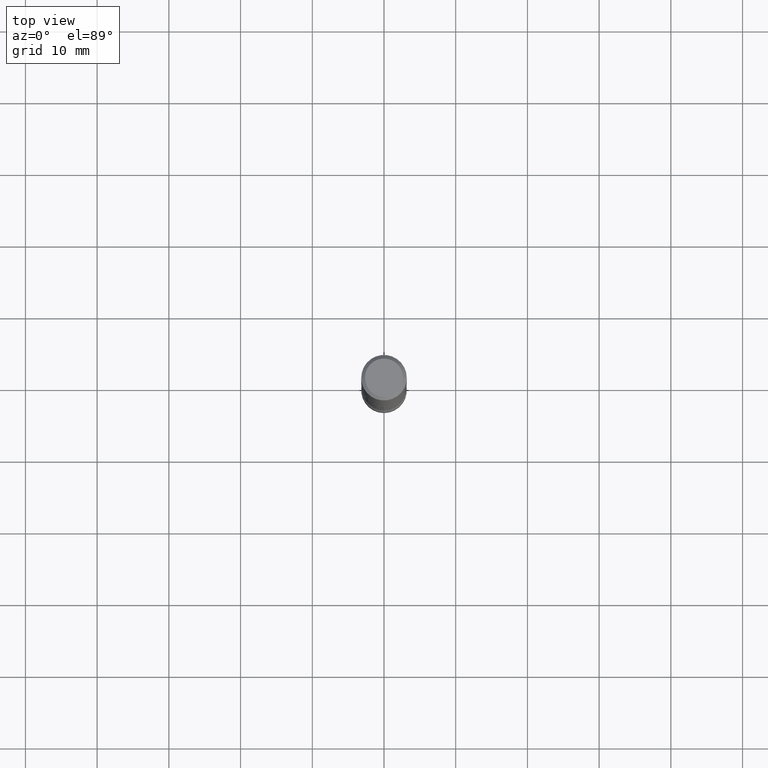
[diagram: clean part render]
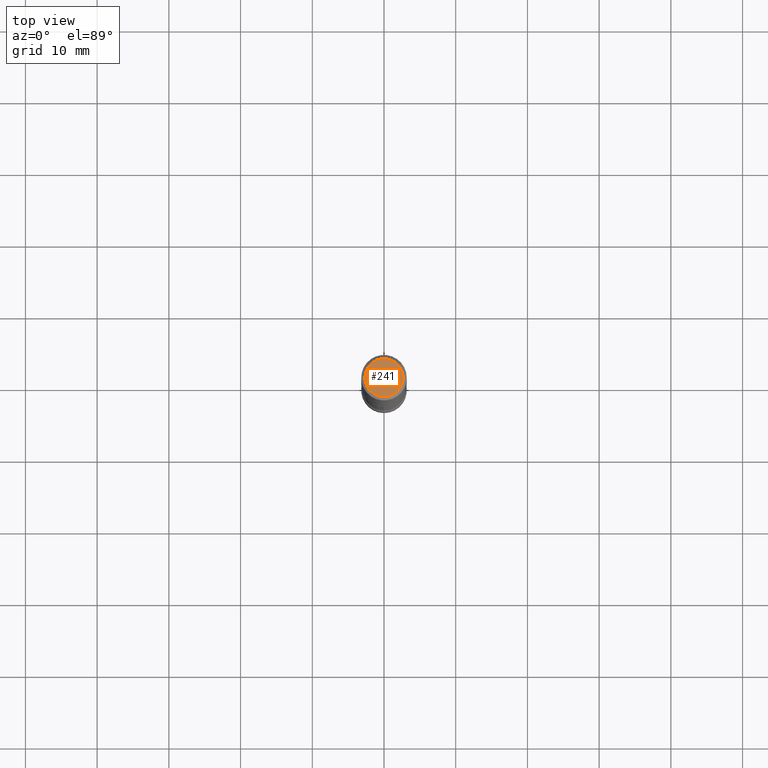
[diagram: same view with one face highlighted and labeled with its STEP entity id]
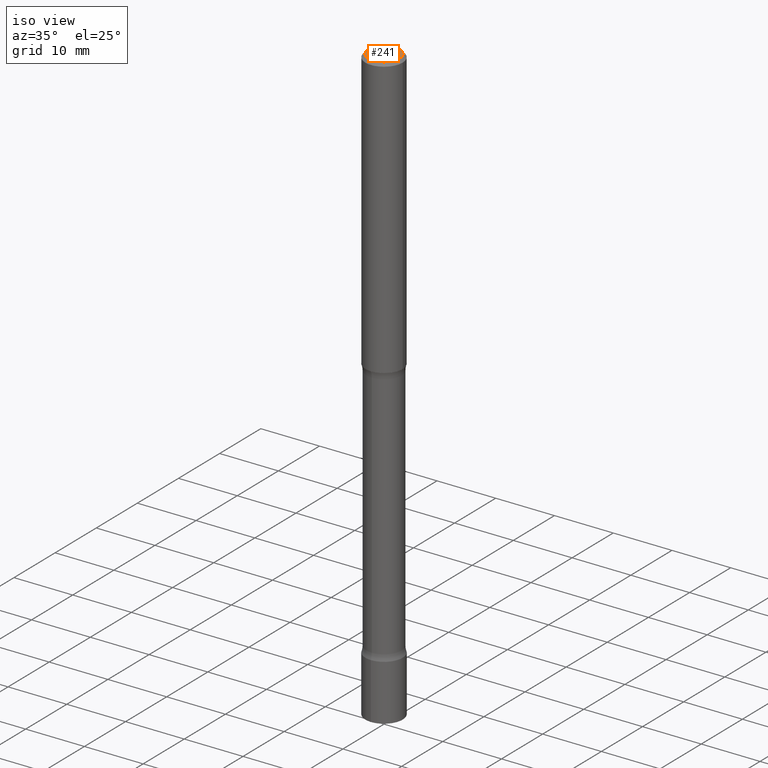
[diagram: same view with one face highlighted and labeled with its STEP entity id]
A machine part, top view. The second image highlights one B-rep face of the part: STEP entity #241.
A second angle (iso view) of the same face is appended — the face is thin or edge-on in the first view.
In plain terms, the highlighted planar face has unit normal (0, -0, -1).
Its self-contained STEP definition (entity closure, byte-faithful):
#4 = AXIS2_PLACEMENT_3D ( 'NONE', #260, #298, #505 ) ;
#26 = AXIS2_PLACEMENT_3D ( 'NONE', #113, #341, #148 ) ;
#86 = CIRCLE ( 'NONE', #123, 0.1049999999999996353 ) ;
#113 = CARTESIAN_POINT ( 'NONE',  ( 7.332110811570553619E-16, 0.1049999999999996353, -3.900823592740812603E-16 ) ) ;
#123 = AXIS2_PLACEMENT_3D ( 'NONE', #152, #144, #254 ) ;
#124 = ORIENTED_EDGE ( 'NONE', *, *, #218, .T. ) ;
#144 = DIRECTION ( 'NONE',  ( -2.445468806185136597E-29, 3.491481338843145583E-15, 1.000000000000000000 ) ) ;
#148 = DIRECTION ( 'NONE',  ( -1.000000000000000000, 6.982962677686265922E-15, -4.876176775795935793E-29 ) ) ;
#152 = CARTESIAN_POINT ( 'NONE',  ( 1.148236555768741665E-45, -1.639377487418492057E-31, -4.695363739110452099E-17 ) ) ;
#157 = ORIENTED_EDGE ( 'NONE', *, *, #185, .T. ) ;
#185 = EDGE_CURVE ( 'NONE', #278, #324, #215, .T. ) ;
#215 = CIRCLE ( 'NONE', #4, 0.1049999999999996353 ) ;
#218 = EDGE_CURVE ( 'NONE', #324, #278, #86, .T. ) ;
#241 = ADVANCED_FACE ( 'NONE', ( #386 ), #332, .F. ) ;
#254 = DIRECTION ( 'NONE',  ( 1.000000000000000000, -6.982962677686266711E-15, 4.874400871621255591E-29 ) ) ;
#260 = CARTESIAN_POINT ( 'NONE',  ( 1.148236555768741665E-45, -1.639377487418492057E-31, -4.695363739110452099E-17 ) ) ;
#278 = VERTEX_POINT ( 'NONE', #391 ) ;
#298 = DIRECTION ( 'NONE',  ( -2.445468806185136597E-29, 3.491481338843145583E-15, 1.000000000000000000 ) ) ;
#314 = CARTESIAN_POINT ( 'NONE',  ( 0.1049999999999996353, -8.238720831321549034E-16, -4.695363739109907908E-17 ) ) ;
#323 = EDGE_LOOP ( 'NONE', ( #157, #124 ) ) ;
#324 = VERTEX_POINT ( 'NONE', #314 ) ;
#332 = PLANE ( 'NONE',  #26 ) ;
#341 = DIRECTION ( 'NONE',  ( 2.438088387897960049E-29, -3.491481338843145188E-15, -1.000000000000000000 ) ) ;
#386 = FACE_OUTER_BOUND ( 'NONE', #323, .T. ) ;
#391 = CARTESIAN_POINT ( 'NONE',  ( -0.1049999999999996353, 7.681258945454863208E-16, -4.695363739110977184E-17 ) ) ;
#505 = DIRECTION ( 'NONE',  ( 1.000000000000000000, -6.982962677686266711E-15, 4.874400871621255591E-29 ) ) ;